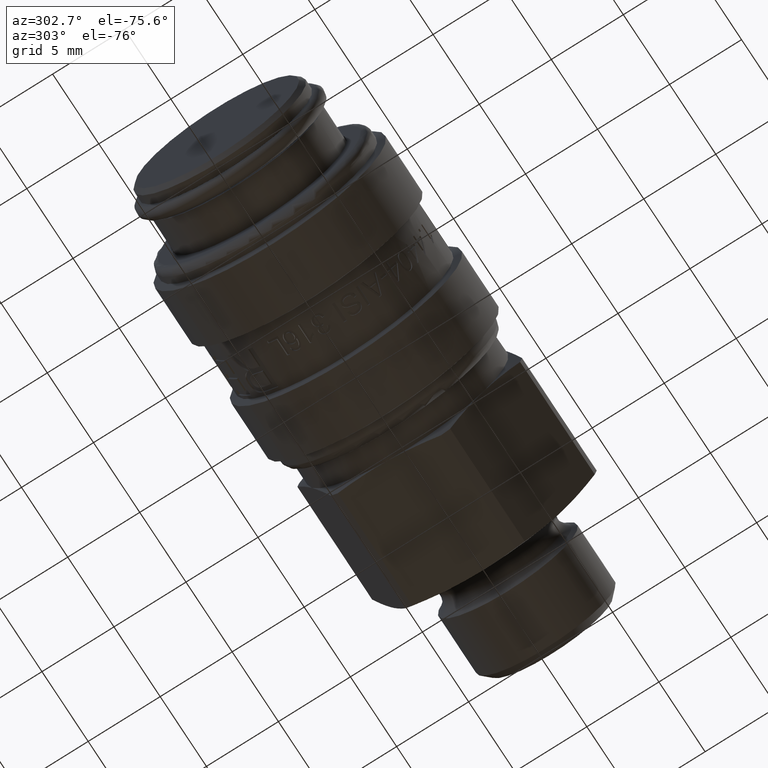
[diagram: clean part render]
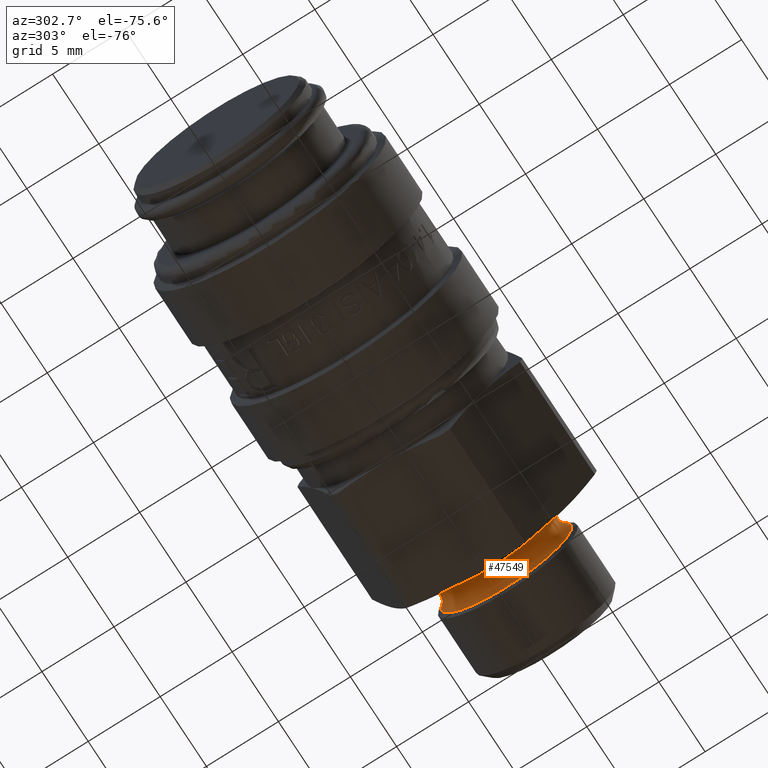
[diagram: same view with one face highlighted and labeled with its STEP entity id]
A machine part, auxiliary view. The second image highlights one B-rep face of the part: STEP entity #47549.
In plain terms, the highlighted toroidal blend (fillet) surface has major radius 5.0166 mm and minor (blend) radius 0.9166 mm.
Its self-contained STEP definition (entity closure, byte-faithful):
#47518=CARTESIAN_POINT('',(29.831523150423784,4.144725833530329,-1.380158596013387));
#47519=VERTEX_POINT('',#47518);
#47520=CARTESIAN_POINT('',(29.831523150423784,0.0,0.0));
#47521=DIRECTION('',(-1.0,0.0,0.0));
#47522=DIRECTION('',(0.0,0.948780542108724,-0.315935884185188));
#47523=AXIS2_PLACEMENT_3D('',#47520,#47521,#47522);
#47524=CIRCLE('',#47523,4.368476849576214);
#47525=EDGE_CURVE('',#47519,#47519,#47524,.T.);
#47530=CARTESIAN_POINT('',(30.479683601853878,0.0,0.0));
#47531=DIRECTION('',(-1.0,0.0,0.0));
#47532=DIRECTION('',(0.0,0.315935884185188,0.948780542108724));
#47533=AXIS2_PLACEMENT_3D('',#47530,#47531,#47532);
#47534=TOROIDAL_SURFACE('',#47533,5.016637301006307,0.916637301006307);
#47535=ORIENTED_EDGE('',*,*,#47525,.F.);
#47536=EDGE_LOOP('',(#47535));
#47537=FACE_OUTER_BOUND('',#47536,.T.);
#47538=CARTESIAN_POINT('',(31.273514790581743,4.324844040328687,-1.440136433244548));
#47539=VERTEX_POINT('',#47538);
#47540=CARTESIAN_POINT('',(31.273514790581743,0.0,0.0));
#47541=DIRECTION('',(-1.0,0.0,0.0));
#47542=DIRECTION('',(0.0,0.948780542108723,-0.315935884185188));
#47543=AXIS2_PLACEMENT_3D('',#47540,#47541,#47542);
#47544=CIRCLE('',#47543,4.558318650503153);
#47545=EDGE_CURVE('',#47539,#47539,#47544,.T.);
#47546=ORIENTED_EDGE('',*,*,#47545,.T.);
#47547=EDGE_LOOP('',(#47546));
#47548=FACE_BOUND('',#47547,.T.);
#47549=ADVANCED_FACE('',(#47537,#47548),#47534,.F.);